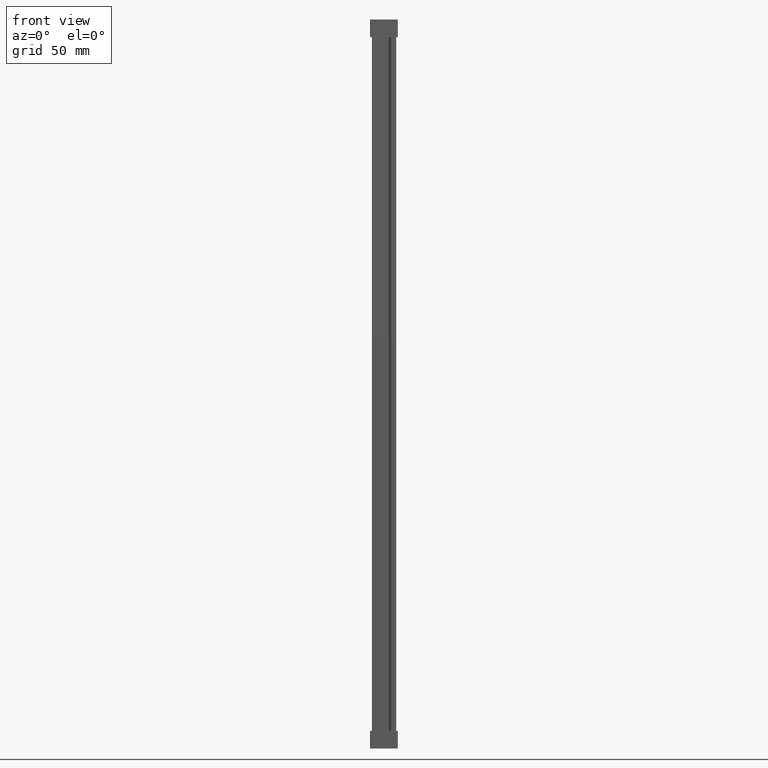
[diagram: clean part render]
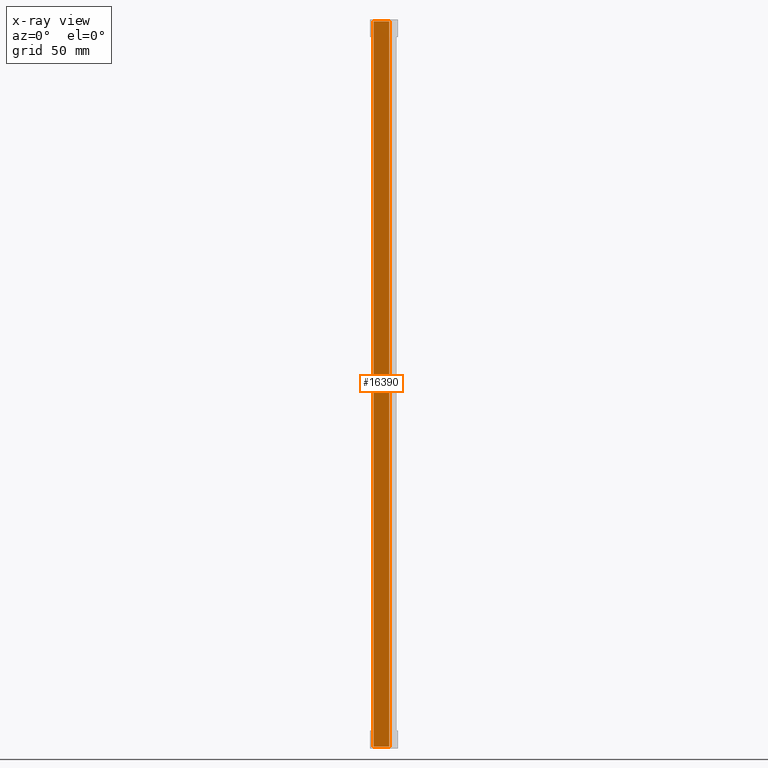
[diagram: x-ray — body ghosted, one internal face saturated and labeled with its STEP entity id]
A machine part, front view, then the same camera in x-ray: the body is ghosted and one INTERNAL B-rep face — a face not visible from any outside direction — is saturated and labeled: STEP entity #16390.
In plain terms, the highlighted planar face has unit normal (0, 1, 0).
Its self-contained STEP definition (entity closure, byte-faithful):
#3083 = VECTOR ( 'NONE', #36506, 1000.000000000000000 ) ;
#3108 = VECTOR ( 'NONE', #36541, 1000.000000000000000 ) ;
#3142 = VECTOR ( 'NONE', #36970, 1000.000000000000000 ) ;
#3211 = VECTOR ( 'NONE', #37725, 1000.000000000000000 ) ;
#15868 = CARTESIAN_POINT ( 'NONE',  ( 9.543233284733545900, 16.44999999999994600, 217.8000000000403100 ) ) ;
#15904 = CARTESIAN_POINT ( 'NONE',  ( 0.3259999999999166300, 16.44999999999995700, -208.8000000000583900 ) ) ;
#15923 = CARTESIAN_POINT ( 'NONE',  ( 9.543233284733545900, 16.44999999999995300, -208.8000000000403400 ) ) ;
#16046 = CARTESIAN_POINT ( 'NONE',  ( 0.3259999999999166300, 16.44999999999995300, 217.8000000000583900 ) ) ;
#16390 = ADVANCED_FACE ( 'NONE', ( #19957 ), #19995, .F. ) ;
#19956 = DIRECTION ( 'NONE',  ( 0.0000000000000000000, 1.000000000000000000, 0.0000000000000000000 ) ) ;
#19957 = FACE_OUTER_BOUND ( 'NONE', #26270, .T. ) ;
#19968 = CARTESIAN_POINT ( 'NONE',  ( 5.825548534933072500, 16.44999999999995700, 219.0000000000000000 ) ) ;
#19971 = DIRECTION ( 'NONE',  ( 0.0000000000000000000, -0.0000000000000000000, 1.000000000000000000 ) ) ;
#19995 = PLANE ( 'NONE',  #35625 ) ;
#23600 = ORIENTED_EDGE ( 'NONE', *, *, #31903, .F. ) ;
#23619 = ORIENTED_EDGE ( 'NONE', *, *, #31851, .T. ) ;
#23632 = ORIENTED_EDGE ( 'NONE', *, *, #31950, .T. ) ;
#23644 = ORIENTED_EDGE ( 'NONE', *, *, #31853, .T. ) ;
#26270 = EDGE_LOOP ( 'NONE', ( #23619, #23644, #23600, #23632 ) ) ;
#31851 = EDGE_CURVE ( 'NONE', #41591, #38386, #36538, .T. ) ;
#31853 = EDGE_CURVE ( 'NONE', #38386, #38420, #36526, .T. ) ;
#31903 = EDGE_CURVE ( 'NONE', #38398, #38420, #36961, .T. ) ;
#31950 = EDGE_CURVE ( 'NONE', #38398, #41591, #37603, .T. ) ;
#35625 = AXIS2_PLACEMENT_3D ( 'NONE', #19968, #19956, #19971 ) ;
#36462 = CARTESIAN_POINT ( 'NONE',  ( 0.3259999999999165800, 16.44999999999995700, 219.0000000000000000 ) ) ;
#36506 = DIRECTION ( 'NONE',  ( 1.000000000000000000, -0.0000000000000000000, 4.965472477636011600E-013 ) ) ;
#36526 = LINE ( 'NONE', #36550, #3083 ) ;
#36538 = LINE ( 'NONE', #36462, #3108 ) ;
#36541 = DIRECTION ( 'NONE',  ( -0.0000000000000000000, -0.0000000000000000000, -1.000000000000000000 ) ) ;
#36550 = CARTESIAN_POINT ( 'NONE',  ( 13.86600000010872900, 16.44999999999995700, -208.8000000000516500 ) ) ;
#36961 = LINE ( 'NONE', #36964, #3142 ) ;
#36964 = CARTESIAN_POINT ( 'NONE',  ( 9.543233284733545900, 16.44999999999994200, -210.0099999999999900 ) ) ;
#36970 = DIRECTION ( 'NONE',  ( -0.0000000000000000000, -0.0000000000000000000, -1.000000000000000000 ) ) ;
#37603 = LINE ( 'NONE', #37687, #3211 ) ;
#37687 = CARTESIAN_POINT ( 'NONE',  ( 13.86600000010872900, 16.44999999999995300, 217.8000000000516800 ) ) ;
#37725 = DIRECTION ( 'NONE',  ( -1.000000000000000000, -0.0000000000000000000, 4.965472477636011600E-013 ) ) ;
#38386 = VERTEX_POINT ( 'NONE', #15904 ) ;
#38398 = VERTEX_POINT ( 'NONE', #15868 ) ;
#38420 = VERTEX_POINT ( 'NONE', #15923 ) ;
#41591 = VERTEX_POINT ( 'NONE', #16046 ) ;